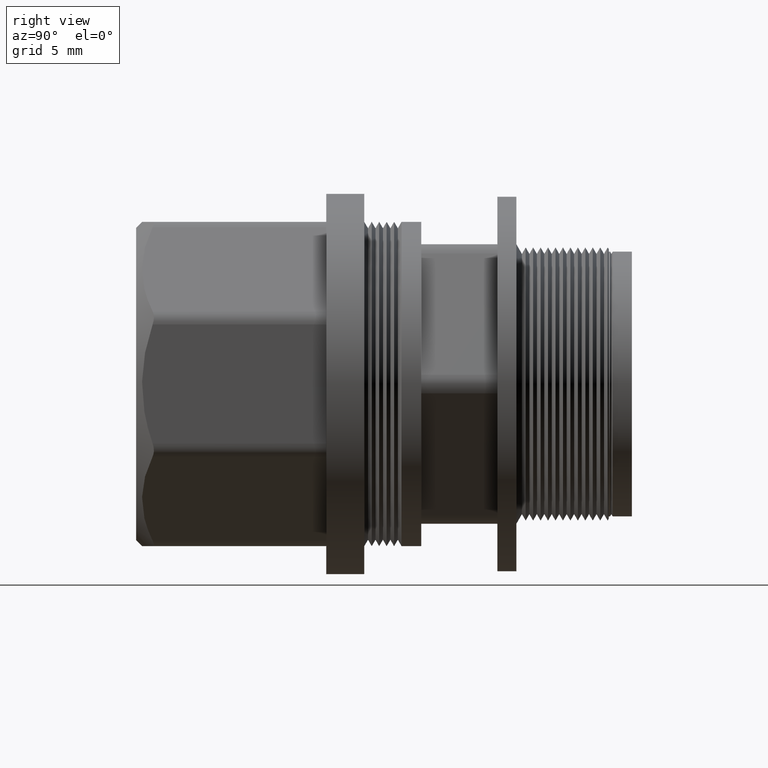
[diagram: clean part render]
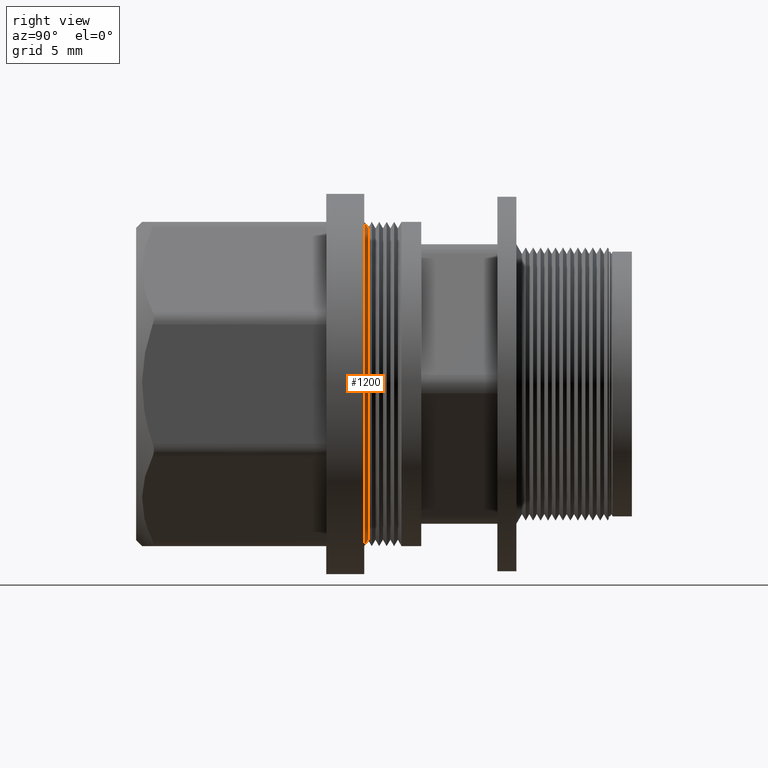
[diagram: same view with one face highlighted and labeled with its STEP entity id]
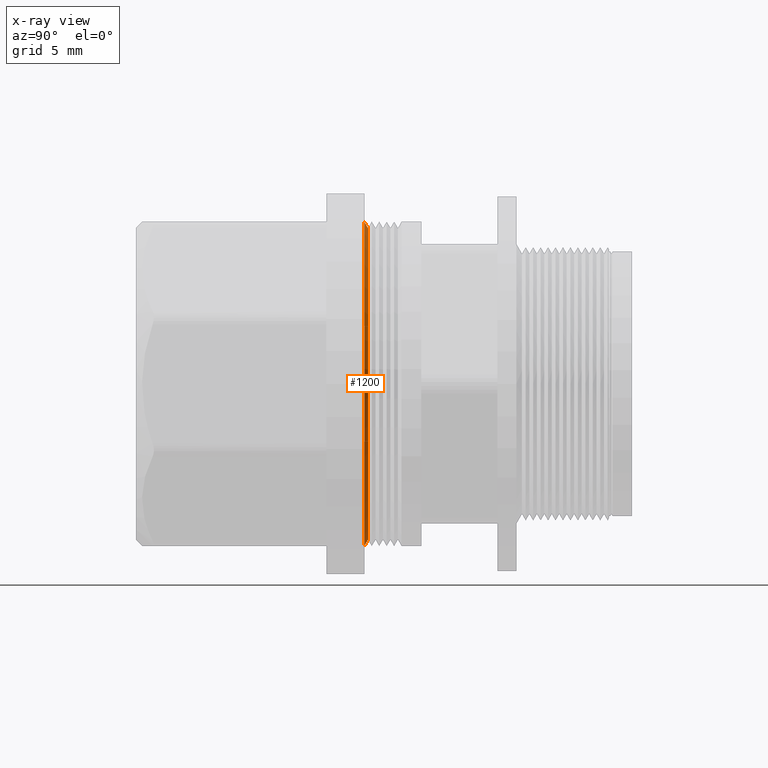
[diagram: x-ray of the same camera — body ghosted, the highlighted face saturated]
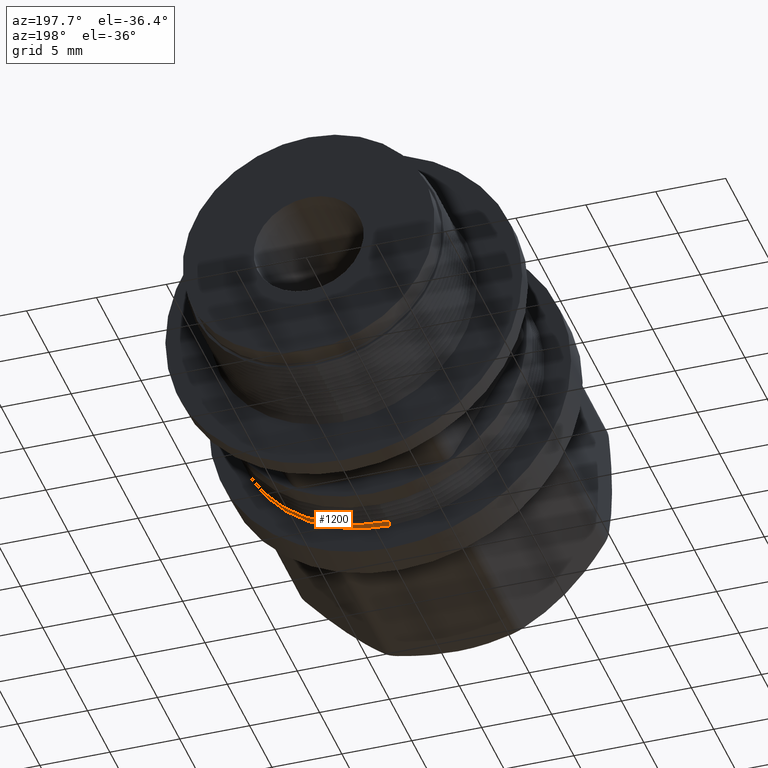
[diagram: same view with one face highlighted and labeled with its STEP entity id]
A machine part, right view. The second image highlights one B-rep face of the part: STEP entity #1200.
The next image is the same camera in x-ray: the body ghosted, the highlighted face saturated — about 0% of this face is hidden behind the body in this view.
A second angle (auxiliary view) of the same face is appended — the face is thin or edge-on in the first view.
In plain terms, the highlighted conical surface has half-angle 59.505 deg.
Its self-contained STEP definition (entity closure, byte-faithful):
#1189 = ORIENTED_EDGE ( 'NONE', *, *, #1190, .F. ) ;
#1190 = EDGE_CURVE ( 'NONE', #1193, #1229, #3299, .T. ) ;
#1193 = VERTEX_POINT ( 'NONE', #3284 ) ;
#1200 = ADVANCED_FACE ( 'NONE', ( #3254 ), #3250, .T. ) ;
#1201 = ORIENTED_EDGE ( 'NONE', *, *, #1225, .F. ) ;
#1225 = EDGE_CURVE ( 'NONE', #1283, #1193, #3273, .T. ) ;
#1227 = ORIENTED_EDGE ( 'NONE', *, *, #1228, .T. ) ;
#1228 = EDGE_CURVE ( 'NONE', #1286, #1229, #3264, .T. ) ;
#1229 = VERTEX_POINT ( 'NONE', #3259 ) ;
#1275 = ORIENTED_EDGE ( 'NONE', *, *, #1276, .T. ) ;
#1276 = EDGE_CURVE ( 'NONE', #1283, #1286, #3459, .T. ) ;
#1283 = VERTEX_POINT ( 'NONE', #3588 ) ;
#1285 = EDGE_LOOP ( 'NONE', ( #1201, #1275, #1227, #1189 ) ) ;
#1286 = VERTEX_POINT ( 'NONE', #3587 ) ;
#3245 = DIRECTION ( 'NONE',  ( 0.0000000000000000000, 0.0000000000000000000, -1.000000000000000000 ) ) ;
#3246 = DIRECTION ( 'NONE',  ( 0.0000000000000000000, -1.000000000000000000, 0.0000000000000000000 ) ) ;
#3247 = CARTESIAN_POINT ( 'NONE',  ( 0.0000000000000000000, 0.6119999999999998800, 0.0000000000000000000 ) ) ;
#3248 = AXIS2_PLACEMENT_3D ( 'NONE', #3247, #3246, #3245 ) ;
#3250 = CONICAL_SURFACE ( 'NONE', #3248, 0.4350000000000000500, 1.038556664437590800 ) ;
#3254 = FACE_OUTER_BOUND ( 'NONE', #1285, .T. ) ;
#3259 = CARTESIAN_POINT ( 'NONE',  ( 0.0000000000000000000, 0.6119999999999998800, -0.4350000000000000500 ) ) ;
#3260 = DIRECTION ( 'NONE',  ( 0.0000000000000000000, 0.0000000000000000000, 1.000000000000000000 ) ) ;
#3261 = DIRECTION ( 'NONE',  ( -0.0000000000000000000, 1.000000000000000000, -0.0000000000000000000 ) ) ;
#3262 = CARTESIAN_POINT ( 'NONE',  ( 0.0000000000000000000, 0.6119999999999998800, 0.0000000000000000000 ) ) ;
#3263 = AXIS2_PLACEMENT_3D ( 'NONE', #3262, #3261, #3260 ) ;
#3264 = CIRCLE ( 'NONE', #3263, 0.4350000000000000500 ) ;
#3269 = DIRECTION ( 'NONE',  ( 0.0000000000000000000, 0.0000000000000000000, 1.000000000000000000 ) ) ;
#3270 = DIRECTION ( 'NONE',  ( -0.0000000000000000000, 1.000000000000000000, -0.0000000000000000000 ) ) ;
#3271 = CARTESIAN_POINT ( 'NONE',  ( 0.0000000000000000000, 0.6221995427989423000, 0.0000000000000000000 ) ) ;
#3272 = AXIS2_PLACEMENT_3D ( 'NONE', #3271, #3270, #3269 ) ;
#3273 = CIRCLE ( 'NONE', #3272, 0.4176812161939553200 ) ;
#3284 = CARTESIAN_POINT ( 'NONE',  ( 0.0000000000000000000, 0.6221995427989423000, -0.4176812161939553200 ) ) ;
#3296 = DIRECTION ( 'NONE',  ( 0.0000000000000000000, -0.5074644682075845100, -0.8616726835096917300 ) ) ;
#3297 = VECTOR ( 'NONE', #3296, 39.37007874015748100 ) ;
#3298 = CARTESIAN_POINT ( 'NONE',  ( 0.0000000000000000000, 0.6119999999999998800, -0.4350000000000000500 ) ) ;
#3299 = LINE ( 'NONE', #3298, #3297 ) ;
#3456 = DIRECTION ( 'NONE',  ( 1.055209843141146900E-016, -0.5074644682075845100, 0.8616726835096917300 ) ) ;
#3457 = VECTOR ( 'NONE', #3456, 39.37007874015748100 ) ;
#3458 = CARTESIAN_POINT ( 'NONE',  ( 5.327037639127342100E-017, 0.6119999999999998800, 0.4350000000000000500 ) ) ;
#3459 = LINE ( 'NONE', #3458, #3457 ) ;
#3587 = CARTESIAN_POINT ( 'NONE',  ( 5.327037639127342100E-017, 0.6119999999999998800, 0.4350000000000000500 ) ) ;
#3588 = CARTESIAN_POINT ( 'NONE',  ( 5.220994175680549400E-017, 0.6221995427989423000, 0.4176812161939553200 ) ) ;